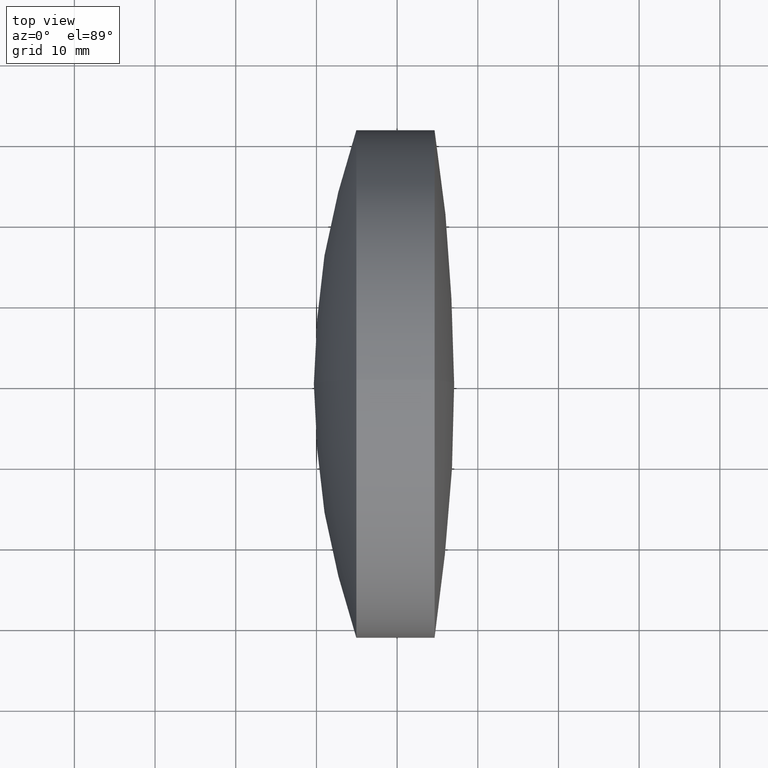
[diagram: clean part render]
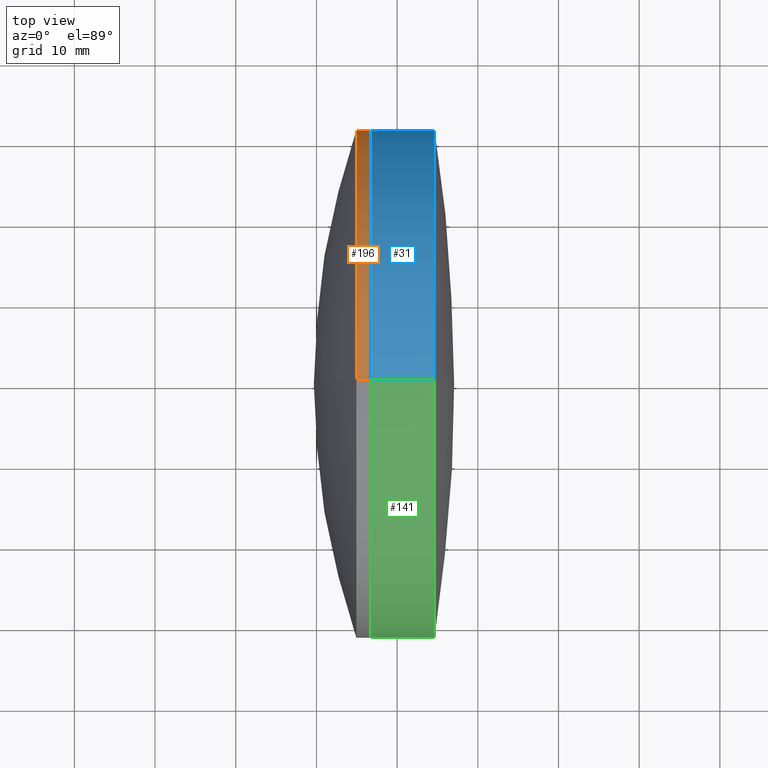
[diagram: same view with three faces highlighted in distinct colors, each labeled with its STEP entity id]
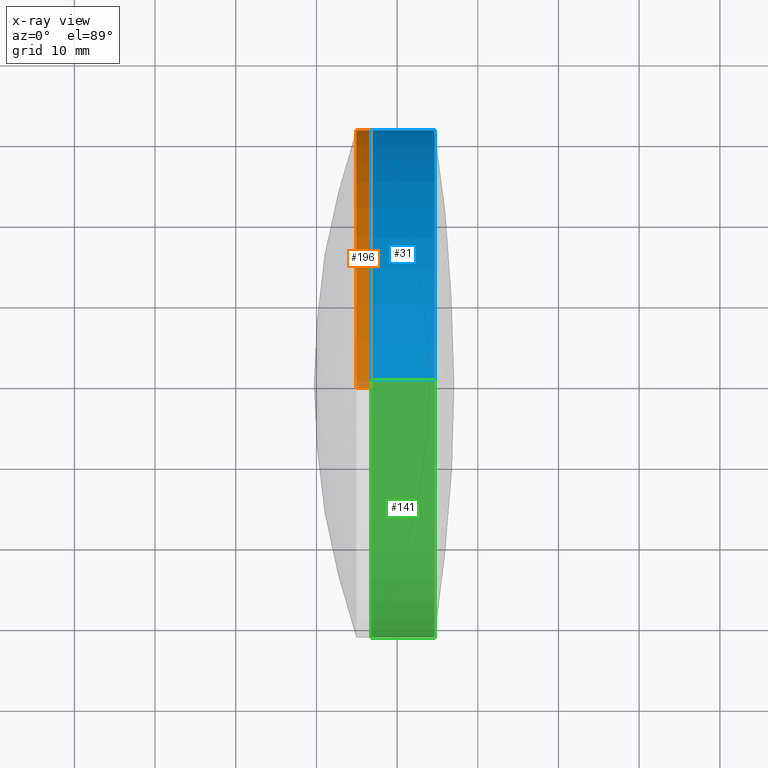
[diagram: x-ray of the same camera — body ghosted, the three highlighted faces saturated]
A machine part, top view with three faces highlighted in distinct colors.
The next image is the same camera in x-ray (body ghosted, the three faces saturated) — at least one of them is partly hidden behind the body in this view.
Their STEP definitions:

[orange] entity #196 — the highlighted cylindrical surface (partial cylindrical patch) has radius 31.5 mm, axis along (-1, -0, -0).
#7 = DIRECTION ( 'NONE',  ( -1.000000000000000000, -0.0000000000000000000, -0.0000000000000000000 ) ) ;
#14 = EDGE_CURVE ( 'NONE', #27, #249, #209, .T. ) ;
#16 = DIRECTION ( 'NONE',  ( 0.0000000000000000000, 0.0000000000000000000, 1.000000000000000000 ) ) ;
#26 = DIRECTION ( 'NONE',  ( -1.000000000000000000, -0.0000000000000000000, -0.0000000000000000000 ) ) ;
#27 = VERTEX_POINT ( 'NONE', #258 ) ;
#29 = CARTESIAN_POINT ( 'NONE',  ( 314.9446393134603600, 0.0000000000000000000, 0.0000000000000000000 ) ) ;
#53 = ORIENTED_EDGE ( 'NONE', *, *, #56, .T. ) ;
#56 = EDGE_CURVE ( 'NONE', #27, #59, #345, .T. ) ;
#59 = VERTEX_POINT ( 'NONE', #113 ) ;
#77 = EDGE_LOOP ( 'NONE', ( #53, #284, #283, #224 ) ) ;
#89 = CARTESIAN_POINT ( 'NONE',  ( 124.5233095260452400, 0.0000000000000000000, 0.0000000000000000000 ) ) ;
#92 = VERTEX_POINT ( 'NONE', #160 ) ;
#108 = CARTESIAN_POINT ( 'NONE',  ( 316.7446973952964400, 0.0000000000000000000, 0.0000000000000000000 ) ) ;
#113 = CARTESIAN_POINT ( 'NONE',  ( 316.7446973952964400, 3.857637417314150900E-015, -31.49999999999990400 ) ) ;
#124 = DIRECTION ( 'NONE',  ( -1.000000000000000000, -0.0000000000000000000, -0.0000000000000000000 ) ) ;
#145 = DIRECTION ( 'NONE',  ( -1.000000000000000000, -0.0000000000000000000, -0.0000000000000000000 ) ) ;
#160 = CARTESIAN_POINT ( 'NONE',  ( 314.9446393134603600, 3.857637417314149300E-015, -31.49999999999991100 ) ) ;
#169 = VECTOR ( 'NONE', #294, 1000.000000000000000 ) ;
#176 = AXIS2_PLACEMENT_3D ( 'NONE', #108, #124, #304 ) ;
#182 = LINE ( 'NONE', #291, #169 ) ;
#189 = CIRCLE ( 'NONE', #246, 31.49999999999990400 ) ;
#196 = ADVANCED_FACE ( 'NONE', ( #264 ), #244, .T. ) ;
#207 = VECTOR ( 'NONE', #145, 1000.000000000000000 ) ;
#209 = LINE ( 'NONE', #313, #207 ) ;
#224 = ORIENTED_EDGE ( 'NONE', *, *, #14, .F. ) ;
#240 = EDGE_CURVE ( 'NONE', #249, #92, #189, .T. ) ;
#244 = CYLINDRICAL_SURFACE ( 'NONE', #278, 31.49999999999990400 ) ;
#246 = AXIS2_PLACEMENT_3D ( 'NONE', #29, #26, #16 ) ;
#249 = VERTEX_POINT ( 'NONE', #309 ) ;
#258 = CARTESIAN_POINT ( 'NONE',  ( 316.7446973952964400, 0.0000000000000000000, 31.49999999999990400 ) ) ;
#264 = FACE_OUTER_BOUND ( 'NONE', #77, .T. ) ;
#273 = EDGE_CURVE ( 'NONE', #59, #92, #182, .T. ) ;
#278 = AXIS2_PLACEMENT_3D ( 'NONE', #89, #7, #330 ) ;
#283 = ORIENTED_EDGE ( 'NONE', *, *, #240, .F. ) ;
#284 = ORIENTED_EDGE ( 'NONE', *, *, #273, .T. ) ;
#291 = CARTESIAN_POINT ( 'NONE',  ( 124.5233095260452400, 3.857637417314150900E-015, -31.49999999999990400 ) ) ;
#294 = DIRECTION ( 'NONE',  ( -1.000000000000000000, -0.0000000000000000000, -0.0000000000000000000 ) ) ;
#304 = DIRECTION ( 'NONE',  ( 0.0000000000000000000, 0.0000000000000000000, 1.000000000000000000 ) ) ;
#309 = CARTESIAN_POINT ( 'NONE',  ( 314.9446393134603600, 0.0000000000000000000, 31.49999999999989000 ) ) ;
#313 = CARTESIAN_POINT ( 'NONE',  ( 124.5233095260452400, 0.0000000000000000000, 31.49999999999990400 ) ) ;
#330 = DIRECTION ( 'NONE',  ( 0.0000000000000000000, 0.0000000000000000000, 1.000000000000000000 ) ) ;
#345 = CIRCLE ( 'NONE', #176, 31.49999999999990400 ) ;

[blue] entity #31 — the highlighted cylindrical surface (partial cylindrical patch) has radius 31.5 mm, axis along (-1, -0, -0).
#4 = ORIENTED_EDGE ( 'NONE', *, *, #104, .F. ) ;
#5 = CIRCLE ( 'NONE', #95, 31.50000000000004300 ) ;
#20 = VECTOR ( 'NONE', #139, 1000.000000000000000 ) ;
#25 = CARTESIAN_POINT ( 'NONE',  ( 324.6429958763490600, 0.0000000000000000000, 31.50000000000004300 ) ) ;
#31 = ADVANCED_FACE ( 'NONE', ( #115 ), #84, .T. ) ;
#46 = AXIS2_PLACEMENT_3D ( 'NONE', #327, #83, #156 ) ;
#67 = CARTESIAN_POINT ( 'NONE',  ( 316.7446973952964400, 3.857637417314154000E-015, -31.50000000000008500 ) ) ;
#83 = DIRECTION ( 'NONE',  ( -1.000000000000000000, -0.0000000000000000000, -0.0000000000000000000 ) ) ;
#84 = CYLINDRICAL_SURFACE ( 'NONE', #157, 31.49999999999998600 ) ;
#93 = DIRECTION ( 'NONE',  ( -1.000000000000000000, -0.0000000000000000000, -0.0000000000000000000 ) ) ;
#95 = AXIS2_PLACEMENT_3D ( 'NONE', #190, #184, #154 ) ;
#104 = EDGE_CURVE ( 'NONE', #218, #137, #312, .T. ) ;
#109 = VECTOR ( 'NONE', #93, 1000.000000000000000 ) ;
#115 = FACE_OUTER_BOUND ( 'NONE', #143, .T. ) ;
#123 = EDGE_CURVE ( 'NONE', #218, #172, #5, .T. ) ;
#130 = LINE ( 'NONE', #165, #109 ) ;
#137 = VERTEX_POINT ( 'NONE', #237 ) ;
#139 = DIRECTION ( 'NONE',  ( -1.000000000000000000, -0.0000000000000000000, -0.0000000000000000000 ) ) ;
#143 = EDGE_LOOP ( 'NONE', ( #241, #323, #153, #4 ) ) ;
#148 = DIRECTION ( 'NONE',  ( -1.000000000000000000, -0.0000000000000000000, -0.0000000000000000000 ) ) ;
#153 = ORIENTED_EDGE ( 'NONE', *, *, #202, .F. ) ;
#154 = DIRECTION ( 'NONE',  ( 0.0000000000000000000, 0.0000000000000000000, 1.000000000000000000 ) ) ;
#156 = DIRECTION ( 'NONE',  ( 0.0000000000000000000, 0.0000000000000000000, 1.000000000000000000 ) ) ;
#157 = AXIS2_PLACEMENT_3D ( 'NONE', #282, #148, #314 ) ;
#165 = CARTESIAN_POINT ( 'NONE',  ( -0.5519199926577972300, 3.857637417314161100E-015, -31.49999999999998600 ) ) ;
#172 = VERTEX_POINT ( 'NONE', #341 ) ;
#184 = DIRECTION ( 'NONE',  ( -1.000000000000000000, -0.0000000000000000000, -0.0000000000000000000 ) ) ;
#190 = CARTESIAN_POINT ( 'NONE',  ( 324.6429958763490600, 0.0000000000000000000, 0.0000000000000000000 ) ) ;
#202 = EDGE_CURVE ( 'NONE', #137, #243, #344, .T. ) ;
#218 = VERTEX_POINT ( 'NONE', #25 ) ;
#226 = CARTESIAN_POINT ( 'NONE',  ( -0.5519199926577972300, 0.0000000000000000000, 31.49999999999998600 ) ) ;
#237 = CARTESIAN_POINT ( 'NONE',  ( 316.7446973952964400, 0.0000000000000000000, 31.49999999999993200 ) ) ;
#241 = ORIENTED_EDGE ( 'NONE', *, *, #123, .T. ) ;
#243 = VERTEX_POINT ( 'NONE', #67 ) ;
#282 = CARTESIAN_POINT ( 'NONE',  ( -0.5519199926577972300, 0.0000000000000000000, 0.0000000000000000000 ) ) ;
#312 = LINE ( 'NONE', #226, #20 ) ;
#314 = DIRECTION ( 'NONE',  ( 0.0000000000000000000, 0.0000000000000000000, 1.000000000000000000 ) ) ;
#323 = ORIENTED_EDGE ( 'NONE', *, *, #326, .T. ) ;
#326 = EDGE_CURVE ( 'NONE', #172, #243, #130, .T. ) ;
#327 = CARTESIAN_POINT ( 'NONE',  ( 316.7446973952964400, 0.0000000000000000000, 0.0000000000000000000 ) ) ;
#341 = CARTESIAN_POINT ( 'NONE',  ( 324.6429958763490600, 3.857637417314168200E-015, -31.50000000000004300 ) ) ;
#344 = CIRCLE ( 'NONE', #46, 31.49999999999993200 ) ;

[green] entity #141 — the highlighted cylindrical surface (partial cylindrical patch) has radius 31.5 mm, axis along (-1, -0, -0).
#13 = DIRECTION ( 'NONE',  ( 0.0000000000000000000, 0.0000000000000000000, 1.000000000000000000 ) ) ;
#20 = VECTOR ( 'NONE', #139, 1000.000000000000000 ) ;
#25 = CARTESIAN_POINT ( 'NONE',  ( 324.6429958763490600, 0.0000000000000000000, 31.50000000000004300 ) ) ;
#28 = ORIENTED_EDGE ( 'NONE', *, *, #104, .T. ) ;
#33 = AXIS2_PLACEMENT_3D ( 'NONE', #311, #40, #61 ) ;
#40 = DIRECTION ( 'NONE',  ( -1.000000000000000000, -0.0000000000000000000, -0.0000000000000000000 ) ) ;
#61 = DIRECTION ( 'NONE',  ( 0.0000000000000000000, 0.0000000000000000000, 1.000000000000000000 ) ) ;
#62 = ORIENTED_EDGE ( 'NONE', *, *, #105, .T. ) ;
#67 = CARTESIAN_POINT ( 'NONE',  ( 316.7446973952964400, 3.857637417314154000E-015, -31.50000000000008500 ) ) ;
#86 = EDGE_CURVE ( 'NONE', #243, #137, #340, .T. ) ;
#91 = AXIS2_PLACEMENT_3D ( 'NONE', #266, #210, #13 ) ;
#93 = DIRECTION ( 'NONE',  ( -1.000000000000000000, -0.0000000000000000000, -0.0000000000000000000 ) ) ;
#94 = DIRECTION ( 'NONE',  ( -1.000000000000000000, -0.0000000000000000000, -0.0000000000000000000 ) ) ;
#104 = EDGE_CURVE ( 'NONE', #218, #137, #312, .T. ) ;
#105 = EDGE_CURVE ( 'NONE', #172, #218, #302, .T. ) ;
#109 = VECTOR ( 'NONE', #93, 1000.000000000000000 ) ;
#130 = LINE ( 'NONE', #165, #109 ) ;
#137 = VERTEX_POINT ( 'NONE', #237 ) ;
#139 = DIRECTION ( 'NONE',  ( -1.000000000000000000, -0.0000000000000000000, -0.0000000000000000000 ) ) ;
#141 = ADVANCED_FACE ( 'NONE', ( #293 ), #268, .T. ) ;
#165 = CARTESIAN_POINT ( 'NONE',  ( -0.5519199926577972300, 3.857637417314161100E-015, -31.49999999999998600 ) ) ;
#172 = VERTEX_POINT ( 'NONE', #341 ) ;
#185 = AXIS2_PLACEMENT_3D ( 'NONE', #229, #94, #303 ) ;
#186 = ORIENTED_EDGE ( 'NONE', *, *, #86, .F. ) ;
#210 = DIRECTION ( 'NONE',  ( -1.000000000000000000, -0.0000000000000000000, -0.0000000000000000000 ) ) ;
#218 = VERTEX_POINT ( 'NONE', #25 ) ;
#225 = EDGE_LOOP ( 'NONE', ( #292, #62, #28, #186 ) ) ;
#226 = CARTESIAN_POINT ( 'NONE',  ( -0.5519199926577972300, 0.0000000000000000000, 31.49999999999998600 ) ) ;
#229 = CARTESIAN_POINT ( 'NONE',  ( -0.5519199926577972300, 0.0000000000000000000, 0.0000000000000000000 ) ) ;
#237 = CARTESIAN_POINT ( 'NONE',  ( 316.7446973952964400, 0.0000000000000000000, 31.49999999999993200 ) ) ;
#243 = VERTEX_POINT ( 'NONE', #67 ) ;
#266 = CARTESIAN_POINT ( 'NONE',  ( 324.6429958763490600, 0.0000000000000000000, 0.0000000000000000000 ) ) ;
#268 = CYLINDRICAL_SURFACE ( 'NONE', #185, 31.49999999999998600 ) ;
#292 = ORIENTED_EDGE ( 'NONE', *, *, #326, .F. ) ;
#293 = FACE_OUTER_BOUND ( 'NONE', #225, .T. ) ;
#302 = CIRCLE ( 'NONE', #91, 31.50000000000004300 ) ;
#303 = DIRECTION ( 'NONE',  ( 0.0000000000000000000, 0.0000000000000000000, 1.000000000000000000 ) ) ;
#311 = CARTESIAN_POINT ( 'NONE',  ( 316.7446973952964400, 0.0000000000000000000, 0.0000000000000000000 ) ) ;
#312 = LINE ( 'NONE', #226, #20 ) ;
#326 = EDGE_CURVE ( 'NONE', #172, #243, #130, .T. ) ;
#340 = CIRCLE ( 'NONE', #33, 31.49999999999993200 ) ;
#341 = CARTESIAN_POINT ( 'NONE',  ( 324.6429958763490600, 3.857637417314168200E-015, -31.50000000000004300 ) ) ;